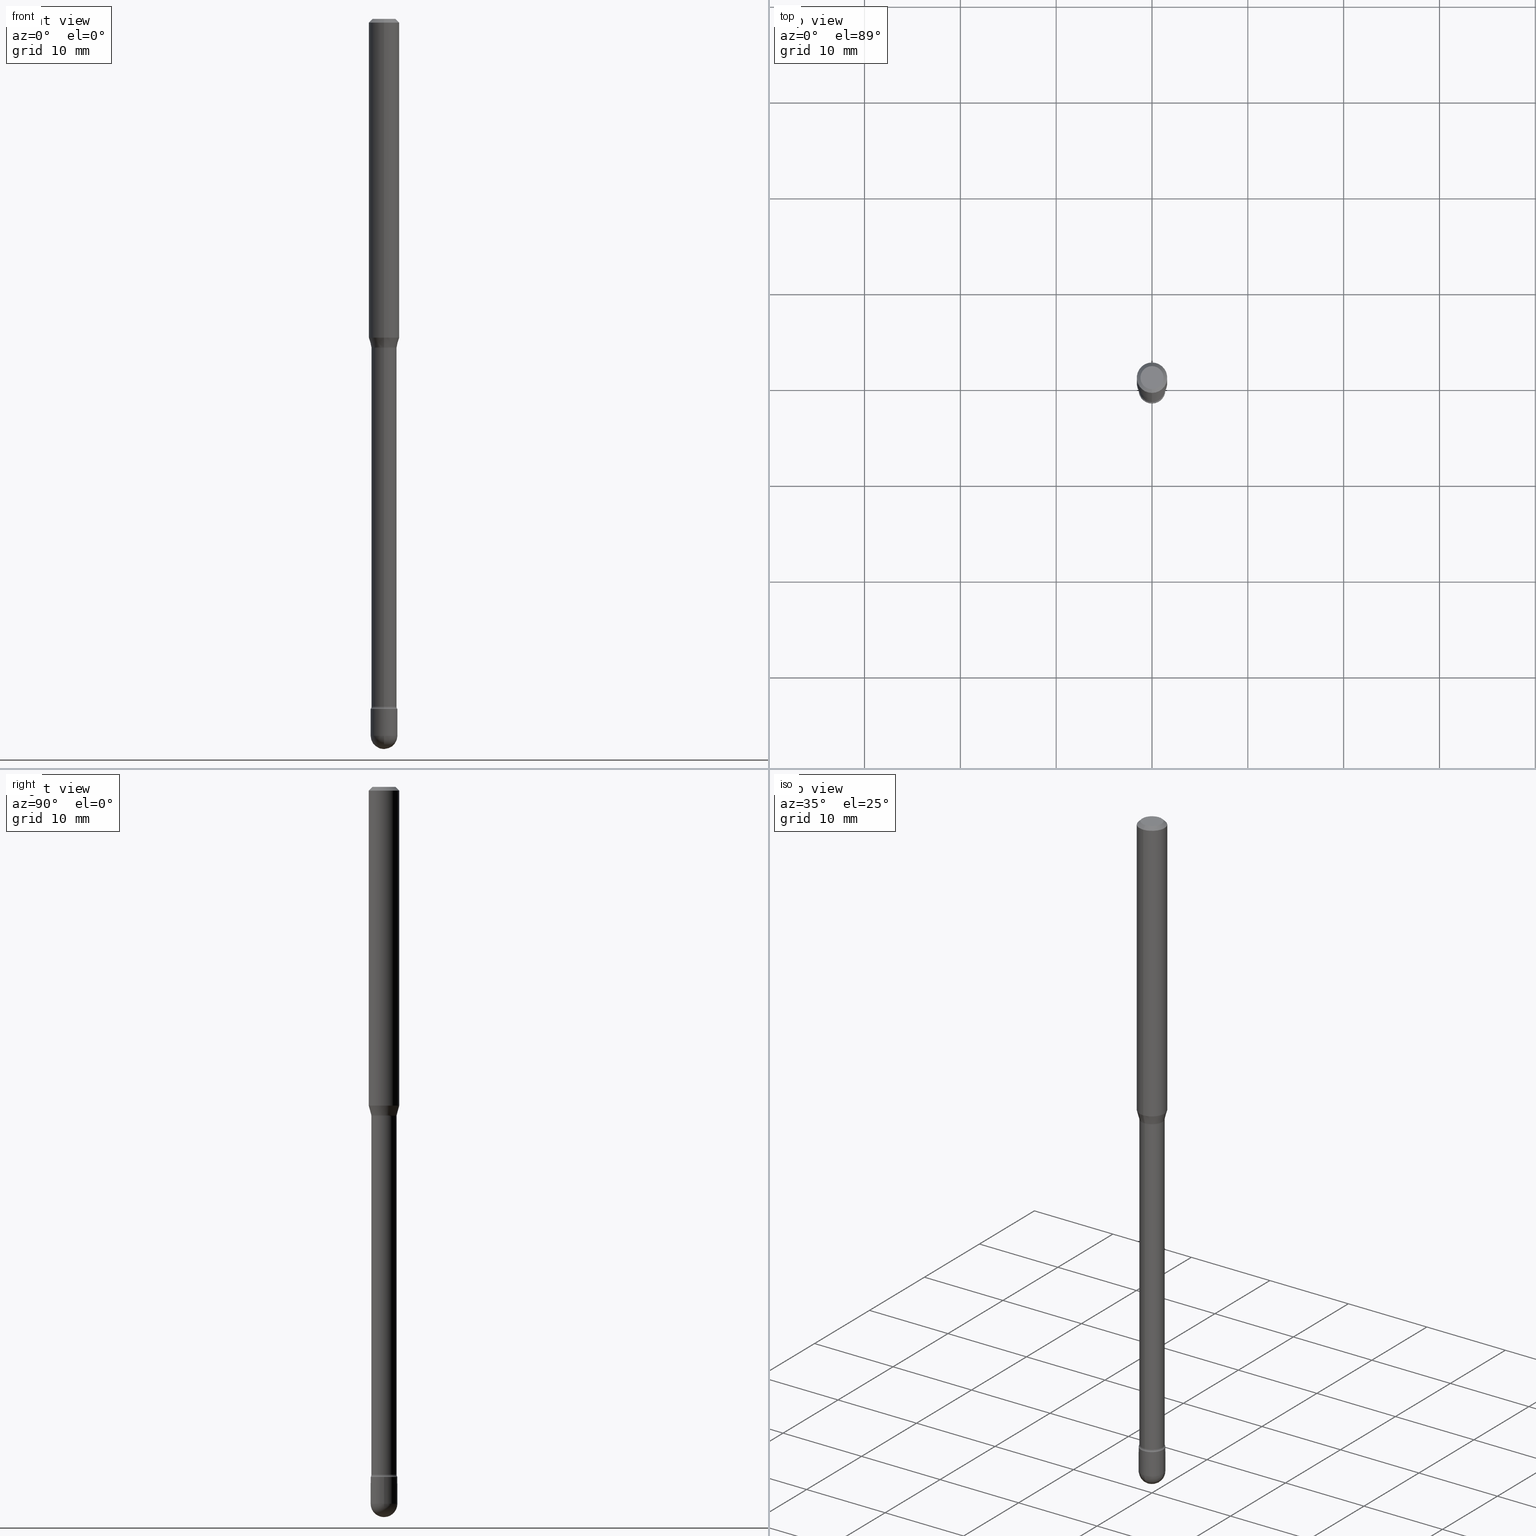
[diagram: canonical four-view strip — front | top / right | iso, engineering-drawing reading convention]
A machine part, canonical four-view strip (front | top / right | iso — engineering-drawing reading convention). The complete STEP part file that produces these views, byte-faithful:
ISO-10303-21;
HEADER;
FILE_DESCRIPTION (( 'STEP AP203' ),
    '1' );
FILE_NAME ('03937.STEP',
    '2024-04-09T21:17:44',
    ( '' ),
    ( '' ),
    'SwSTEP 2.0',
    'SolidWorks 2023',
    '' );
FILE_SCHEMA (( 'CONFIG_CONTROL_DESIGN' ));
ENDSEC;

DATA;
#1 = ADVANCED_FACE ( 'NONE', ( #493 ), #275, .F. ) ;
#2 = DIRECTION ( 'NONE',  ( -2.445438913098746868E-29, 3.491524147444264637E-15, 1.000000000000000000 ) ) ;
#3 = DIRECTION ( 'NONE',  ( -2.445468806185136877E-29, 3.491481338843145188E-15, 1.000000000000000000 ) ) ;
#4 = FACE_OUTER_BOUND ( 'NONE', #56, .T. ) ;
#5 = VECTOR ( 'NONE', #505, 39.37007874015748143 ) ;
#6 = DIRECTION ( 'NONE',  ( -6.982962677686265922E-15, -1.000000000000000000, 3.483106191921935554E-15 ) ) ;
#7 = ORIENTED_EDGE ( 'NONE', *, *, #425, .T. ) ;
#8 = DIRECTION ( 'NONE',  ( -6.982962677686266711E-15, -1.000000000000000000, 0.000000000000000000 ) ) ;
#9 = ADVANCED_FACE ( 'NONE', ( #438 ), #452, .T. ) ;
#10 = CARTESIAN_POINT ( 'NONE',  ( 6.909864735020778379E-29, -9.865697093748834148E-15, -2.825613307291703347 ) ) ;
#11 = ORIENTED_EDGE ( 'NONE', *, *, #379, .F. ) ;
#12 = ORIENTED_EDGE ( 'NONE', *, *, #344, .T. ) ;
#13 = DIRECTION ( 'NONE',  ( -2.445468806185136597E-29, 3.491481338843145583E-15, 1.000000000000000000 ) ) ;
#14 = EDGE_LOOP ( 'NONE', ( #348, #99, #91, #454 ) ) ;
#15 = PERSON_AND_ORGANIZATION_ROLE ( 'design_supplier' ) ;
#16 = VERTEX_POINT ( 'NONE', #199 ) ;
#17 = AXIS2_PLACEMENT_3D ( 'NONE', #231, #285, #544 ) ;
#18 = CIRCLE ( 'NONE', #414, 0.05500000000000000028 ) ;
#19 = CARTESIAN_POINT ( 'NONE',  ( 0.05500000000000000028, -1.028241254289306465E-14, -2.835000000000000409 ) ) ;
#20 = ORIENTED_EDGE ( 'NONE', *, *, #166, .F. ) ;
#21 = EDGE_CURVE ( 'NONE', #16, #547, #139, .T. ) ;
#22 = DIRECTION ( 'NONE',  ( -1.000000000000000000, 6.982962677686265922E-15, -4.883557194083112901E-29 ) ) ;
#23 = CARTESIAN_POINT ( 'NONE',  ( 4.739320047520198249E-16, 0.06669999999999527696, -1.351974787463811722 ) ) ;
#24 = DIRECTION ( 'NONE',  ( -2.445438913098746868E-29, 3.491524147444264637E-15, 1.000000000000000000 ) ) ;
#25 = VERTEX_POINT ( 'NONE', #329 ) ;
#26 = CARTESIAN_POINT ( 'NONE',  ( 3.296677862327240735E-29, -4.706897522978815768E-15, -1.348092501787273356 ) ) ;
#27 = CARTESIAN_POINT ( 'NONE',  ( 6.932819318634947422E-29, -9.898470958004491062E-15, -2.835000000000000409 ) ) ;
#28 = AXIS2_PLACEMENT_3D ( 'NONE', #262, #437, #41 ) ;
#29 = SPHERICAL_SURFACE ( 'NONE', #95, 0.05499999999999991007 ) ;
#30 = VECTOR ( 'NONE', #367, 39.37007874015748143 ) ;
#31 = CC_DESIGN_PERSON_AND_ORGANIZATION_ASSIGNMENT ( #48, #140, ( #411 ) ) ;
#32 = EDGE_CURVE ( 'NONE', #181, #16, #245, .T. ) ;
#33 = VECTOR ( 'NONE', #421, 39.37007874015748143 ) ;
#34 = DIRECTION ( 'NONE',  ( -6.982962677686266711E-15, -1.000000000000000000, 5.232311393739397672E-15 ) ) ;
#35 = LINE ( 'NONE', #297, #508 ) ;
#36 = APPROVAL_PERSON_ORGANIZATION ( #184, #80, #440 ) ;
#37 = EDGE_CURVE ( 'NONE', #314, #530, #177, .T. ) ;
#38 = AXIS2_PLACEMENT_3D ( 'NONE', #345, #217, #6 ) ;
#39 = ORIENTED_EDGE ( 'NONE', *, *, #126, .T. ) ;
#40 = CARTESIAN_POINT ( 'NONE',  ( -4.657636106016061720E-16, -0.06670000000001005680, -2.825613307291703347 ) ) ;
#41 = DIRECTION ( 'NONE',  ( 1.000000000000000000, 0.000000000000000000, 0.000000000000000000 ) ) ;
#42 = LINE ( 'NONE', #92, #49 ) ;
#43 = DIRECTION ( 'NONE',  ( -6.982962677686266711E-15, -1.000000000000000000, 3.491524147444265031E-15 ) ) ;
#44 = COORDINATED_UNIVERSAL_TIME_OFFSET ( 5, 0, .BEHIND. ) ;
#45 = DATE_AND_TIME ( #350, #426 ) ;
#46 = DIRECTION ( 'NONE',  ( -2.445438913098746868E-29, 3.491524147444264637E-15, 1.000000000000000000 ) ) ;
#47 = EDGE_LOOP ( 'NONE', ( #136, #315, #271, #497 ) ) ;
#48 = PERSON_AND_ORGANIZATION ( #59, #514 ) ;
#49 = VECTOR ( 'NONE', #3, 39.37007874015748143 ) ;
#50 = CARTESIAN_POINT ( 'NONE',  ( -3.645882506857935592E-16, -0.05221111260566867890, -1.348092501787273134 ) ) ;
#51 = LINE ( 'NONE', #502, #333 ) ;
#52 = APPROVAL_DATE_TIME ( #444, #124 ) ;
#53 = VERTEX_POINT ( 'NONE', #498 ) ;
#54 = ORIENTED_EDGE ( 'NONE', *, *, #361, .F. ) ;
#55 = CARTESIAN_POINT ( 'NONE',  ( 7.201905634215227412E-29, -1.028241254289306465E-14, -2.945000000000000284 ) ) ;
#56 = EDGE_LOOP ( 'NONE', ( #54, #485, #306, #490 ) ) ;
#57 = EDGE_LOOP ( 'NONE', ( #61, #439, #7, #323 ) ) ;
#58 = CONICAL_SURFACE ( 'NONE', #377, 0.06250000000000000000, 0.7853981633974483900 ) ;
#59 = PERSON ( 'UNSPECIFIED', 'UNSPECIFIED', 'UNSPECIFIED', ('UNSPECIFIED'), ('UNSPECIFIED'), ('UNSPECIFIED') ) ;
#60 = CARTESIAN_POINT ( 'NONE',  ( -0.05500000000000000028, -9.699582564588636708E-15, -2.835000000000000409 ) ) ;
#61 = ORIENTED_EDGE ( 'NONE', *, *, #66, .F. ) ;
#62 = CARTESIAN_POINT ( 'NONE',  ( -1.169113584055446105E-44, 1.669184350826100908E-30, 4.780733988912460139E-16 ) ) ;
#63 = LINE ( 'NONE', #98, #30 ) ;
#64 = VERTEX_POINT ( 'NONE', #417 ) ;
#65 = DIRECTION ( 'NONE',  ( -6.982962677686265922E-15, -1.000000000000000000, 3.491524147444265031E-15 ) ) ;
#66 = EDGE_CURVE ( 'NONE', #530, #280, #563, .T. ) ;
#67 = DIRECTION ( 'NONE',  ( -2.445438913098746868E-29, 3.491524147444264637E-15, 1.000000000000000000 ) ) ;
#68 = CARTESIAN_POINT ( 'NONE',  ( -1.169113584055446105E-44, 1.669184350826100908E-30, 4.780733988912460139E-16 ) ) ;
#69 = DIRECTION ( 'NONE',  ( -6.982962677686265922E-15, -1.000000000000000000, 0.000000000000000000 ) ) ;
#70 = SPHERICAL_SURFACE ( 'NONE', #258, 0.05499999999999991007 ) ;
#71 = SECURITY_CLASSIFICATION ( '', '', #522 ) ;
#72 = CC_DESIGN_PERSON_AND_ORGANIZATION_ASSIGNMENT ( #193, #130, ( #71 ) ) ;
#73 = CIRCLE ( 'NONE', #120, 0.05170000000000024576 ) ;
#74 = ADVANCED_FACE ( 'NONE', ( #102 ), #451, .T. ) ;
#75 = CONICAL_SURFACE ( 'NONE', #156, 0.06250000000000000000, 0.7853981633974483900 ) ;
#76 = AXIS2_PLACEMENT_3D ( 'NONE', #336, #2, #477 ) ;
#77 = CARTESIAN_POINT ( 'NONE',  ( 3.296677862327240735E-29, -4.706897522978815768E-15, -1.348092501787273356 ) ) ;
#78 = EDGE_CURVE ( 'NONE', #25, #53, #164, .T. ) ;
#79 = CARTESIAN_POINT ( 'NONE',  ( 4.739320047520571972E-16, 0.06669999999999032259, -2.825613307291703347 ) ) ;
#80 = APPROVAL ( #529, 'UNSPECIFIED' ) ;
#81 = FACE_OUTER_BOUND ( 'NONE', #415, .T. ) ;
#82 = APPROVAL_PERSON_ORGANIZATION ( #484, #124, #264 ) ;
#83 = CLOSED_SHELL ( 'NONE', ( #506, #261, #555, #142, #531 ) ) ;
#84 = LINE ( 'NONE', #291, #376 ) ;
#85 = AXIS2_PLACEMENT_3D ( 'NONE', #241, #13, #418 ) ;
#86 = DIRECTION ( 'NONE',  ( 6.982962677686265922E-15, 1.000000000000000000, -3.491524147444264637E-15 ) ) ;
#87 = EDGE_CURVE ( 'NONE', #409, #185, #433, .T. ) ;
#88 = COORDINATED_UNIVERSAL_TIME_OFFSET ( 5, 0, .BEHIND. ) ;
#89 = DATE_TIME_ROLE ( 'classification_date' ) ;
#90 = CARTESIAN_POINT ( 'NONE',  ( -3.610191704363808417E-16, -0.05170000000000012780, 6.585851973141149814E-16 ) ) ;
#91 = ORIENTED_EDGE ( 'NONE', *, *, #289, .T. ) ;
#92 = CARTESIAN_POINT ( 'NONE',  ( -0.05500000000000000028, 3.907985046680551042E-16, -2.705414299640198362E-30 ) ) ;
#93 = CIRCLE ( 'NONE', #380, 0.05221111260566397433 ) ;
#94 = CALENDAR_DATE ( 2024, 9, 4 ) ;
#95 = AXIS2_PLACEMENT_3D ( 'NONE', #227, #22, #183 ) ;
#96 = EDGE_LOOP ( 'NONE', ( #12, #236 ) ) ;
#97 = DIRECTION ( 'NONE',  ( -2.445438913098746868E-29, 3.491524147444264637E-15, 1.000000000000000000 ) ) ;
#98 = CARTESIAN_POINT ( 'NONE',  ( -4.287811248607203282E-16, -0.06250000000000005551, -0.01499999999999986587 ) ) ;
#99 = ORIENTED_EDGE ( 'NONE', *, *, #468, .T. ) ;
#100 = APPROVAL_STATUS ( 'not_yet_approved' ) ;
#101 = ORIENTED_EDGE ( 'NONE', *, *, #200, .T. ) ;
#102 = FACE_OUTER_BOUND ( 'NONE', #445, .T. ) ;
#103 = EDGE_CURVE ( 'NONE', #482, #226, #471, .T. ) ;
#104 = APPROVAL_STATUS ( 'not_yet_approved' ) ;
#105 = ORIENTED_EDGE ( 'NONE', *, *, #328, .F. ) ;
#106 = CARTESIAN_POINT ( 'NONE',  ( 6.909949201323477273E-29, -9.865576133195845499E-15, -2.825613307291703347 ) ) ;
#107 = CARTESIAN_POINT ( 'NONE',  ( 6.909864735020778379E-29, -9.865697093748834148E-15, -2.825613307291703347 ) ) ;
#108 =( GEOMETRIC_REPRESENTATION_CONTEXT ( 3 ) GLOBAL_UNCERTAINTY_ASSIGNED_CONTEXT ( ( #252 ) ) GLOBAL_UNIT_ASSIGNED_CONTEXT ( ( #298, #290, #381 ) ) REPRESENTATION_CONTEXT ( 'NONE', 'WORKASPACE' ) );
#109 = EDGE_LOOP ( 'NONE', ( #528, #364, #542, #233 ) ) ;
#110 = DIRECTION ( 'NONE',  ( -2.445438913098746868E-29, 3.491524147444264637E-15, 1.000000000000000000 ) ) ;
#111 = CIRCLE ( 'NONE', #219, 0.01499999999999994220 ) ;
#112 = CARTESIAN_POINT ( 'NONE',  ( 3.202776308162011460E-29, -4.572827707497310591E-15, -1.309693851278256549 ) ) ;
#113 = EDGE_CURVE ( 'NONE', #64, #53, #35, .T. ) ;
#114 = ORIENTED_EDGE ( 'NONE', *, *, #103, .F. ) ;
#115 = FACE_OUTER_BOUND ( 'NONE', #109, .T. ) ;
#116 = DIRECTION ( 'NONE',  ( -2.445438913098746868E-29, 3.491524147444264637E-15, 1.000000000000000000 ) ) ;
#117 = FACE_OUTER_BOUND ( 'NONE', #224, .T. ) ;
#118 = AXIS2_PLACEMENT_3D ( 'NONE', #549, #24, #201 ) ;
#119 = CARTESIAN_POINT ( 'NONE',  ( -0.05500000000000000028, -9.699582564588636708E-15, -2.945000000000000284 ) ) ;
#120 = AXIS2_PLACEMENT_3D ( 'NONE', #107, #277, #69 ) ;
#121 = EDGE_CURVE ( 'NONE', #530, #212, #84, .T. ) ;
#122 = DIRECTION ( 'NONE',  ( -2.445468806185136597E-29, 3.491481338843145583E-15, 1.000000000000000000 ) ) ;
#123 = CARTESIAN_POINT ( 'NONE',  ( 7.201905634215227412E-29, -1.028241254289306465E-14, -2.945000000000000284 ) ) ;
#124 = APPROVAL ( #104, 'UNSPECIFIED' ) ;
#125 = AXIS2_PLACEMENT_3D ( 'NONE', #68, #510, #558 ) ;
#126 = EDGE_CURVE ( 'NONE', #146, #195, #208, .T. ) ;
#127 = DIRECTION ( 'NONE',  ( -2.445438913098746308E-29, 3.491524147444264637E-15, 1.000000000000000000 ) ) ;
#128 = CARTESIAN_POINT ( 'NONE',  ( -1.169113584055446105E-44, 1.669184350826100908E-30, 4.780733988912460139E-16 ) ) ;
#129 = VECTOR ( 'NONE', #351, 39.37007874015748143 ) ;
#130 = PERSON_AND_ORGANIZATION_ROLE ( 'classification_officer' ) ;
#131 = EDGE_LOOP ( 'NONE', ( #167, #266, #494, #151, #400 ) ) ;
#132 = DIRECTION ( 'NONE',  ( -6.982962677686266711E-15, -1.000000000000000000, 3.491524147444265031E-15 ) ) ;
#133 = COORDINATED_UNIVERSAL_TIME_OFFSET ( 5, 0, .BEHIND. ) ;
#134 = APPROVAL_DATE_TIME ( #45, #80 ) ;
#135 = EDGE_LOOP ( 'NONE', ( #105, #416, #11, #543 ) ) ;
#136 = ORIENTED_EDGE ( 'NONE', *, *, #472, .F. ) ;
#137 = CARTESIAN_POINT ( 'NONE',  ( 3.907985046681240802E-16, 0.05499999999999006378, -2.835000000000000409 ) ) ;
#138 = FACE_OUTER_BOUND ( 'NONE', #131, .T. ) ;
#139 = CIRCLE ( 'NONE', #486, 0.05500000000000000028 ) ;
#140 = PERSON_AND_ORGANIZATION_ROLE ( 'creator' ) ;
#141 = EDGE_LOOP ( 'NONE', ( #318, #349, #538, #483 ) ) ;
#142 = ADVANCED_FACE ( 'NONE', ( #478 ), #70, .T. ) ;
#143 = FACE_OUTER_BOUND ( 'NONE', #47, .T. ) ;
#144 = DIRECTION ( 'NONE',  ( 7.105427357601006592E-15, 1.000000000000000000, 0.000000000000000000 ) ) ;
#145 = DIRECTION ( 'NONE',  ( -6.982962677686266711E-15, -1.000000000000000000, 5.232311393739397672E-15 ) ) ;
#146 = VERTEX_POINT ( 'NONE', #435 ) ;
#147 = EDGE_LOOP ( 'NONE', ( #283, #448 ) ) ;
#148 = CARTESIAN_POINT ( 'NONE',  ( 3.673505943880415323E-16, 0.05169999999999527751, -1.351974787463811722 ) ) ;
#149 = DIRECTION ( 'NONE',  ( -6.982962677686266711E-15, -1.000000000000000000, 5.232311393739397672E-15 ) ) ;
#150 = DIRECTION ( 'NONE',  ( 2.445438913098746308E-29, -3.491524147444264637E-15, -1.000000000000000000 ) ) ;
#151 = ORIENTED_EDGE ( 'NONE', *, *, #446, .F. ) ;
#152 = DIRECTION ( 'NONE',  ( -6.982962677686266711E-15, -1.000000000000000000, 5.284038672464726492E-15 ) ) ;
#153 = DIRECTION ( 'NONE',  ( -6.982962677686266711E-15, -1.000000000000000000, 0.000000000000000000 ) ) ;
#154 = AXIS2_PLACEMENT_3D ( 'NONE', #123, #172, #339 ) ;
#155 = ORIENTED_EDGE ( 'NONE', *, *, #446, .T. ) ;
#156 = AXIS2_PLACEMENT_3D ( 'NONE', #228, #500, #405 ) ;
#157 = CARTESIAN_POINT ( 'NONE',  ( 3.668158369648140306E-31, -5.237286221166425502E-17, -0.01500000000000008271 ) ) ;
#158 = CIRCLE ( 'NONE', #209, 0.04749999999999999362 ) ;
#159 = DIRECTION ( 'NONE',  ( 1.000000000000000000, -6.982962677686265922E-15, 4.883557194083112340E-29 ) ) ;
#160 = DIRECTION ( 'NONE',  ( -6.982962677686265922E-15, -1.000000000000000000, 3.491524147444265426E-15 ) ) ;
#161 = DIRECTION ( 'NONE',  ( 1.000000000000000000, -6.982962677686265922E-15, 4.876176775795935793E-29 ) ) ;
#162 = LOCAL_TIME ( 17, 17, 44.00000000000000000, #133 ) ;
#163 = ADVANCED_FACE ( 'NONE', ( #175 ), #521, .T. ) ;
#164 = CIRCLE ( 'NONE', #250, 0.06250000000000000000 ) ;
#165 = CARTESIAN_POINT ( 'NONE',  ( 0.000000000000000000, 0.000000000000000000, 0.000000000000000000 ) ) ;
#166 = EDGE_CURVE ( 'NONE', #280, #307, #523, .T. ) ;
#167 = ORIENTED_EDGE ( 'NONE', *, *, #21, .T. ) ;
#168 = CIRCLE ( 'NONE', #38, 0.06250000000000000000 ) ;
#169 = CC_DESIGN_DATE_AND_TIME_ASSIGNMENT ( #225, #341, ( #331 ) ) ;
#170 = DIMENSIONAL_EXPONENTS ( 1.000000000000000000, 0.000000000000000000, 0.000000000000000000, 0.000000000000000000, 0.000000000000000000, 0.000000000000000000, 0.000000000000000000 ) ;
#171 = DIRECTION ( 'NONE',  ( -2.445438913098746868E-29, 3.491524147444264637E-15, 1.000000000000000000 ) ) ;
#172 = DIRECTION ( 'NONE',  ( -2.445468806185136597E-29, 3.491481338843145583E-15, 1.000000000000000000 ) ) ;
#173 = APPLICATION_PROTOCOL_DEFINITION ( 'international standard', 'config_control_design', 1994, #467 ) ;
#174 = CARTESIAN_POINT ( 'NONE',  ( 3.840629472728140100E-16, 0.05499999999999010541, -2.835000000000000409 ) ) ;
#175 = FACE_OUTER_BOUND ( 'NONE', #276, .T. ) ;
#176 = CALENDAR_DATE ( 2024, 9, 4 ) ;
#177 = CIRCLE ( 'NONE', #465, 0.05221111260566397433 ) ;
#178 = CIRCLE ( 'NONE', #456, 0.05500000000000000028 ) ;
#179 = PERSON_AND_ORGANIZATION_ROLE ( 'creator' ) ;
#180 = DIRECTION ( 'NONE',  ( -2.445438913098746868E-29, 3.491524147444264637E-15, 1.000000000000000000 ) ) ;
#181 = VERTEX_POINT ( 'NONE', #319 ) ;
#182 = ORIENTED_EDGE ( 'NONE', *, *, #457, .F. ) ;
#183 = DIRECTION ( 'NONE',  ( 6.982962677686265922E-15, 1.000000000000000000, 0.000000000000000000 ) ) ;
#184 = PERSON_AND_ORGANIZATION ( #59, #514 ) ;
#185 = VERTEX_POINT ( 'NONE', #495 ) ;
#186 = ADVANCED_FACE ( 'NONE', ( #534 ), #75, .T. ) ;
#187 = ORIENTED_EDGE ( 'NONE', *, *, #269, .T. ) ;
#188 = CARTESIAN_POINT ( 'NONE',  ( 3.840629472727447874E-16, 0.04749999999999999362, -2.485923956665947374E-16 ) ) ;
#189 = DIRECTION ( 'NONE',  ( -2.445438913098746868E-29, 3.491524147444264637E-15, 1.000000000000000000 ) ) ;
#190 = DIRECTION ( 'NONE',  ( -2.445438913098746868E-29, 3.491524147444264637E-15, 1.000000000000000000 ) ) ;
#191 = ORIENTED_EDGE ( 'NONE', *, *, #113, .T. ) ;
#192 = AXIS2_PLACEMENT_3D ( 'NONE', #366, #548, #203 ) ;
#193 = PERSON_AND_ORGANIZATION ( #59, #514 ) ;
#194 = TOROIDAL_SURFACE ( 'NONE', #383, 0.06669999999999999540, 0.01500000000000002720 ) ;
#195 = VERTEX_POINT ( 'NONE', #492 ) ;
#196 = DIRECTION ( 'NONE',  ( -6.982962677686265922E-15, -1.000000000000000000, 4.370956789862821150E-15 ) ) ;
#197 = CARTESIAN_POINT ( 'NONE',  ( 7.201905634215227412E-29, -1.028241254289306465E-14, -2.945000000000000284 ) ) ;
#198 = EDGE_LOOP ( 'NONE', ( #450, #353, #274, #368 ) ) ;
#199 = CARTESIAN_POINT ( 'NONE',  ( 3.840629472728163765E-16, 0.05499999999998968214, -2.945000000000000284 ) ) ;
#200 = EDGE_CURVE ( 'NONE', #212, #64, #321, .T. ) ;
#201 = DIRECTION ( 'NONE',  ( -6.982962677686265133E-15, -1.000000000000000000, 3.491524147444264637E-15 ) ) ;
#202 = ORIENTED_EDGE ( 'NONE', *, *, #472, .T. ) ;
#203 = DIRECTION ( 'NONE',  ( -6.982962677686265922E-15, -1.000000000000000000, 3.491524147444265426E-15 ) ) ;
#204 = CARTESIAN_POINT ( 'NONE',  ( 3.306212169491530451E-29, -4.720394741016325897E-15, -1.351974787463811278 ) ) ;
#205 = AXIS2_PLACEMENT_3D ( 'NONE', #326, #97, #149 ) ;
#206 = CARTESIAN_POINT ( 'NONE',  ( 4.075357388645994900E-16, 0.05221111260565927670, -1.348092501787273800 ) ) ;
#207 = LOCAL_TIME ( 17, 17, 44.00000000000000000, #88 ) ;
#208 = CIRCLE ( 'NONE', #154, 0.05500000000000000028 ) ;
#209 = AXIS2_PLACEMENT_3D ( 'NONE', #223, #443, #132 ) ;
#210 = DIRECTION ( 'NONE',  ( -7.105427357601001070E-15, -1.000000000000000000, 0.000000000000000000 ) ) ;
#211 = CIRCLE ( 'NONE', #287, 0.05170000000000024576 ) ;
#212 = VERTEX_POINT ( 'NONE', #551 ) ;
#213 = DIRECTION ( 'NONE',  ( -1.000000000000000000, 6.982962677686265922E-15, -4.883557194083112901E-29 ) ) ;
#214 = CARTESIAN_POINT ( 'NONE',  ( 7.201905634215227412E-29, -1.028241254289306465E-14, -2.945000000000000284 ) ) ;
#215 = ADVANCED_FACE ( 'NONE', ( #488 ), #561, .T. ) ;
#216 = DIRECTION ( 'NONE',  ( -6.982962677686263555E-15, -1.000000000000000000, 0.000000000000000000 ) ) ;
#217 = DIRECTION ( 'NONE',  ( -2.445438913098746868E-29, 3.491524147444264637E-15, 1.000000000000000000 ) ) ;
#218 = AXIS2_PLACEMENT_3D ( 'NONE', #55, #159, #362 ) ;
#219 = AXIS2_PLACEMENT_3D ( 'NONE', #79, #257, #387 ) ;
#220 = PRODUCT ( '03937', '03937', '', ( #427 ) ) ;
#221 = CIRCLE ( 'NONE', #246, 0.05500000000000000028 ) ;
#222 = EDGE_CURVE ( 'NONE', #402, #25, #355, .T. ) ;
#223 = CARTESIAN_POINT ( 'NONE',  ( 2.023335485053711433E-45, -2.889266265655194036E-31, -8.274499866299218144E-17 ) ) ;
#224 = EDGE_LOOP ( 'NONE', ( #302, #242, #39, #155, #114 ) ) ;
#225 = DATE_AND_TIME ( #176, #520 ) ;
#226 = VERTEX_POINT ( 'NONE', #19 ) ;
#227 = CARTESIAN_POINT ( 'NONE',  ( 7.201905634215227412E-29, -1.028241254289306465E-14, -2.945000000000000284 ) ) ;
#228 = CARTESIAN_POINT ( 'NONE',  ( 3.668158369648140306E-31, -5.237286221166425502E-17, -0.01500000000000008271 ) ) ;
#229 = EDGE_LOOP ( 'NONE', ( #524, #565, #182, #312 ) ) ;
#230 = EDGE_LOOP ( 'NONE', ( #527, #406, #359, #461 ) ) ;
#231 = CARTESIAN_POINT ( 'NONE',  ( 6.932819318634947422E-29, -9.898470958004491062E-15, -2.835000000000000409 ) ) ;
#232 = CC_DESIGN_APPROVAL ( #378, ( #411 ) ) ;
#233 = ORIENTED_EDGE ( 'NONE', *, *, #425, .F. ) ;
#234 = EDGE_CURVE ( 'NONE', #386, #280, #459, .T. ) ;
#235 = CIRCLE ( 'NONE', #424, 0.05500000000000000028 ) ;
#236 = ORIENTED_EDGE ( 'NONE', *, *, #103, .T. ) ;
#237 = CARTESIAN_POINT ( 'NONE',  ( -3.645882506857935592E-16, -0.05221111260566867890, -1.348092501787273134 ) ) ;
#238 = DIRECTION ( 'NONE',  ( -6.982962677686266711E-15, -1.000000000000000000, 5.232311393739397672E-15 ) ) ;
#239 = FACE_OUTER_BOUND ( 'NONE', #57, .T. ) ;
#240 = ORIENTED_EDGE ( 'NONE', *, *, #337, .T. ) ;
#241 = CARTESIAN_POINT ( 'NONE',  ( 0.000000000000000000, 0.000000000000000000, 0.000000000000000000 ) ) ;
#242 = ORIENTED_EDGE ( 'NONE', *, *, #457, .T. ) ;
#243 = CARTESIAN_POINT ( 'NONE',  ( 6.932904065534862655E-29, -9.898349595620319665E-15, -2.835000000000000409 ) ) ;
#244 = CALENDAR_DATE ( 2024, 9, 4 ) ;
#245 = CIRCLE ( 'NONE', #218, 0.05499999999999991007 ) ;
#246 = AXIS2_PLACEMENT_3D ( 'NONE', #265, #122, #294 ) ;
#247 = DIRECTION ( 'NONE',  ( -1.000000000000000000, 6.982962677686265922E-15, -4.883557194083112901E-29 ) ) ;
#248 = ADVANCED_FACE ( 'NONE', ( #115 ), #194, .F. ) ;
#249 = ADVANCED_FACE ( 'NONE', ( #363 ), #335, .T. ) ;
#250 = AXIS2_PLACEMENT_3D ( 'NONE', #157, #110, #504 ) ;
#251 = AXIS2_PLACEMENT_3D ( 'NONE', #243, #423, #161 ) ;
#252 = UNCERTAINTY_MEASURE_WITH_UNIT (LENGTH_MEASURE( 1.000000000000000082E-05 ), #298, 'distance_accuracy_value', 'NONE');
#253 = DIRECTION ( 'NONE',  ( -2.445438913098746868E-29, 3.491524147444264637E-15, 1.000000000000000000 ) ) ;
#254 = CC_DESIGN_PERSON_AND_ORGANIZATION_ASSIGNMENT ( #390, #179, ( #331 ) ) ;
#255 = DIRECTION ( 'NONE',  ( -2.445468806185136597E-29, 3.491481338843145583E-15, 1.000000000000000000 ) ) ;
#256 = DATE_AND_TIME ( #244, #479 ) ;
#257 = DIRECTION ( 'NONE',  ( 1.000000000000000000, -7.105427357601001070E-15, 4.926316032796245516E-29 ) ) ;
#258 = AXIS2_PLACEMENT_3D ( 'NONE', #214, #247, #388 ) ;
#259 = DIRECTION ( 'NONE',  ( -2.445468806185136597E-29, 3.491481338843145583E-15, 1.000000000000000000 ) ) ;
#260 = CIRCLE ( 'NONE', #466, 0.04749999999999999362 ) ;
#261 = ADVANCED_FACE ( 'NONE', ( #398 ), #29, .T. ) ;
#262 = CARTESIAN_POINT ( 'NONE',  ( 0.000000000000000000, 0.000000000000000000, 0.000000000000000000 ) ) ;
#263 = DIRECTION ( 'NONE',  ( -1.000000000000000000, 6.982962677686265922E-15, -4.883557194083112901E-29 ) ) ;
#264 = APPROVAL_ROLE ( '' ) ;
#265 = CARTESIAN_POINT ( 'NONE',  ( 6.932904065534862655E-29, -9.898349595620319665E-15, -2.835000000000000409 ) ) ;
#266 = ORIENTED_EDGE ( 'NONE', *, *, #407, .T. ) ;
#267 = DATE_AND_TIME ( #273, #162 ) ;
#268 = ORIENTED_EDGE ( 'NONE', *, *, #334, .F. ) ;
#269 = EDGE_CURVE ( 'NONE', #64, #212, #311, .T. ) ;
#270 = AXIS2_PLACEMENT_3D ( 'NONE', #491, #263, #216 ) ;
#271 = ORIENTED_EDGE ( 'NONE', *, *, #87, .T. ) ;
#272 = DIRECTION ( 'NONE',  ( -6.982962677686265922E-15, -1.000000000000000000, 0.000000000000000000 ) ) ;
#273 = CALENDAR_DATE ( 2024, 9, 4 ) ;
#274 = ORIENTED_EDGE ( 'NONE', *, *, #269, .F. ) ;
#275 = PLANE ( 'NONE',  #382 ) ;
#276 = EDGE_LOOP ( 'NONE', ( #347, #101, #191, #304 ) ) ;
#277 = DIRECTION ( 'NONE',  ( -2.445438913098746868E-29, 3.491524147444264637E-15, 1.000000000000000000 ) ) ;
#278 = CC_DESIGN_APPROVAL ( #124, ( #331 ) ) ;
#279 = AXIS2_PLACEMENT_3D ( 'NONE', #128, #557, #160 ) ;
#280 = VERTEX_POINT ( 'NONE', #148 ) ;
#281 = CARTESIAN_POINT ( 'NONE',  ( 4.364351673553919652E-16, 0.06249999999999995143, -0.01500000000000030129 ) ) ;
#282 = DIRECTION ( 'NONE',  ( -2.445468806185136597E-29, 3.491481338843145583E-15, 1.000000000000000000 ) ) ;
#283 = ORIENTED_EDGE ( 'NONE', *, *, #305, .T. ) ;
#284 = DIRECTION ( 'NONE',  ( -6.982962677686265133E-15, -1.000000000000000000, 3.491524147444264637E-15 ) ) ;
#285 = DIRECTION ( 'NONE',  ( -2.445438913098746868E-29, 3.491524147444264637E-15, 1.000000000000000000 ) ) ;
#286 = EDGE_CURVE ( 'NONE', #533, #386, #73, .T. ) ;
#287 = AXIS2_PLACEMENT_3D ( 'NONE', #10, #413, #272 ) ;
#288 = FACE_OUTER_BOUND ( 'NONE', #96, .T. ) ;
#289 = EDGE_CURVE ( 'NONE', #53, #25, #168, .T. ) ;
#290 =( NAMED_UNIT ( * ) PLANE_ANGLE_UNIT ( ) SI_UNIT ( $, .RADIAN. ) );
#291 = CARTESIAN_POINT ( 'NONE',  ( 3.709822678791042177E-16, 0.05221111260565927670, -1.348092501787273800 ) ) ;
#292 = VECTOR ( 'NONE', #46, 39.37007874015748143 ) ;
#293 = LENGTH_MEASURE_WITH_UNIT ( LENGTH_MEASURE( 0.02539999999999999897 ), #475 );
#294 = DIRECTION ( 'NONE',  ( 1.000000000000000000, -6.982962677686279332E-15, 0.000000000000000000 ) ) ;
#295 = EDGE_CURVE ( 'NONE', #458, #402, #260, .T. ) ;
#296 = DIRECTION ( 'NONE',  ( -2.445438913098746868E-29, 3.491524147444264637E-15, 1.000000000000000000 ) ) ;
#297 = CARTESIAN_POINT ( 'NONE',  ( -4.364351673553916201E-16, -0.06250000000000000000, 6.962936581065126030E-16 ) ) ;
#298 =( CONVERSION_BASED_UNIT ( 'INCH', #293 ) LENGTH_UNIT ( ) NAMED_UNIT ( #170 ) );
#299 = PRODUCT_DEFINITION_SHAPE ( 'NONE', 'NONE',  #331 ) ;
#300 = DIRECTION ( 'NONE',  ( -1.000000000000000000, 7.105427357601001070E-15, -4.926315508542082329E-29 ) ) ;
#301 = AXIS2_PLACEMENT_3D ( 'NONE', #40, #213, #8 ) ;
#302 = ORIENTED_EDGE ( 'NONE', *, *, #407, .F. ) ;
#303 = CARTESIAN_POINT ( 'NONE',  ( -3.610191704363469207E-16, -0.05170000000000472135, -1.351974787463811056 ) ) ;
#304 = ORIENTED_EDGE ( 'NONE', *, *, #78, .F. ) ;
#305 = EDGE_CURVE ( 'NONE', #402, #458, #158, .T. ) ;
#306 = ORIENTED_EDGE ( 'NONE', *, *, #389, .T. ) ;
#307 = VERTEX_POINT ( 'NONE', #303 ) ;
#308 = APPLICATION_PROTOCOL_DEFINITION ( 'international standard', 'config_control_design', 1994, #556 ) ;
#309 = ORIENTED_EDGE ( 'NONE', *, *, #286, .T. ) ;
#310 = DIRECTION ( 'NONE',  ( -6.982962677686265922E-15, -1.000000000000000000, 4.370956789862821150E-15 ) ) ;
#311 = CIRCLE ( 'NONE', #372, 0.06250000000000000000 ) ;
#312 = ORIENTED_EDGE ( 'NONE', *, *, #21, .F. ) ;
#313 = CARTESIAN_POINT ( 'NONE',  ( 3.202776308162011460E-29, -4.572827707497310591E-15, -1.309693851278256549 ) ) ;
#314 = VERTEX_POINT ( 'NONE', #50 ) ;
#315 = ORIENTED_EDGE ( 'NONE', *, *, #361, .T. ) ;
#316 = DIRECTION ( 'NONE',  ( -2.445468806185136597E-29, 3.491481338843145583E-15, 1.000000000000000000 ) ) ;
#317 = EDGE_CURVE ( 'NONE', #307, #280, #395, .T. ) ;
#318 = ORIENTED_EDGE ( 'NONE', *, *, #468, .F. ) ;
#319 = CARTESIAN_POINT ( 'NONE',  ( 7.338758125850653249E-29, -1.047107623783178152E-14, -3.000000000000000444 ) ) ;
#320 = DIRECTION ( 'NONE',  ( 2.445438913098746868E-29, -3.491524147444264637E-15, -1.000000000000000000 ) ) ;
#321 = CIRCLE ( 'NONE', #553, 0.06250000000000000000 ) ;
#322 = AXIS2_PLACEMENT_3D ( 'NONE', #26, #67, #145 ) ;
#323 = ORIENTED_EDGE ( 'NONE', *, *, #317, .T. ) ;
#324 = LINE ( 'NONE', #237, #129 ) ;
#325 = DIRECTION ( 'NONE',  ( -2.445438913098746868E-29, 3.491524147444264637E-15, 1.000000000000000000 ) ) ;
#326 = CARTESIAN_POINT ( 'NONE',  ( 3.296677862327240735E-29, -4.706897522978815768E-15, -1.348092501787273356 ) ) ;
#327 = DIRECTION ( 'NONE',  ( 6.982962677686265922E-15, 1.000000000000000000, -3.483106191921935554E-15 ) ) ;
#328 = EDGE_CURVE ( 'NONE', #181, #146, #473, .T. ) ;
#329 = CARTESIAN_POINT ( 'NONE',  ( 4.440892098500948609E-16, 0.06249999999999995143, -0.01500000000000030129 ) ) ;
#330 = DIRECTION ( 'NONE',  ( 1.000000000000000000, -6.982962677686266711E-15, 4.876176775795935793E-29 ) ) ;
#331 = PRODUCT_DEFINITION ( 'UNKNOWN', '', #411, #511 ) ;
#332 = DIRECTION ( 'NONE',  ( 1.839019923739600315E-15, 0.2588190451025249583, 0.9659258262890670910 ) ) ;
#333 = VECTOR ( 'NONE', #370, 39.37007874015748143 ) ;
#334 = EDGE_CURVE ( 'NONE', #533, #307, #340, .T. ) ;
#335 = CONICAL_SURFACE ( 'NONE', #322, 0.05221111260566397433, 0.2617993877991502960 ) ;
#336 = CARTESIAN_POINT ( 'NONE',  ( 3.306171754792412151E-29, -4.720452617165725259E-15, -1.351974787463811278 ) ) ;
#337 = EDGE_CURVE ( 'NONE', #212, #25, #517, .T. ) ;
#338 = CARTESIAN_POINT ( 'NONE',  ( -3.610191704363126052E-16, -0.05170000000001011287, -2.825613307291703347 ) ) ;
#339 = DIRECTION ( 'NONE',  ( 1.000000000000000000, -6.982962677686279332E-15, 0.000000000000000000 ) ) ;
#340 = LINE ( 'NONE', #90, #292 ) ;
#341 = DATE_TIME_ROLE ( 'creation_date' ) ;
#342 = CC_DESIGN_SECURITY_CLASSIFICATION ( #71, ( #411 ) ) ;
#343 = ORIENTED_EDGE ( 'NONE', *, *, #512, .F. ) ;
#344 = EDGE_CURVE ( 'NONE', #226, #482, #221, .T. ) ;
#345 = CARTESIAN_POINT ( 'NONE',  ( 3.668158369648140306E-31, -5.237286221166425502E-17, -0.01500000000000008271 ) ) ;
#346 = AXIS2_PLACEMENT_3D ( 'NONE', #481, #300, #210 ) ;
#347 = ORIENTED_EDGE ( 'NONE', *, *, #337, .F. ) ;
#348 = ORIENTED_EDGE ( 'NONE', *, *, #295, .F. ) ;
#349 = ORIENTED_EDGE ( 'NONE', *, *, #305, .F. ) ;
#350 = CALENDAR_DATE ( 2024, 9, 4 ) ;
#351 = DIRECTION ( 'NONE',  ( -1.807323732225330139E-15, -0.2588190451025181860, 0.9659258262890689783 ) ) ;
#352 = PERSON_AND_ORGANIZATION_ROLE ( 'design_owner' ) ;
#353 = ORIENTED_EDGE ( 'NONE', *, *, #121, .T. ) ;
#354 = DIRECTION ( 'NONE',  ( 1.000000000000000000, -7.105427357601001070E-15, 4.926316032796245516E-29 ) ) ;
#355 = LINE ( 'NONE', #281, #5 ) ;
#356 = AXIS2_PLACEMENT_3D ( 'NONE', #23, #354, #144 ) ;
#357 = CARTESIAN_POINT ( 'NONE',  ( 3.668158369648140306E-31, -5.237286221166425502E-17, -0.01500000000000008271 ) ) ;
#358 = TOROIDAL_SURFACE ( 'NONE', #118, 0.06669999999999999540, 0.01500000000000002720 ) ;
#359 = ORIENTED_EDGE ( 'NONE', *, *, #436, .T. ) ;
#360 = ORIENTED_EDGE ( 'NONE', *, *, #113, .F. ) ;
#361 = EDGE_CURVE ( 'NONE', #386, #409, #111, .T. ) ;
#362 = DIRECTION ( 'NONE',  ( 6.982962677686265922E-15, 1.000000000000000000, 0.000000000000000000 ) ) ;
#363 = FACE_OUTER_BOUND ( 'NONE', #198, .T. ) ;
#364 = ORIENTED_EDGE ( 'NONE', *, *, #66, .T. ) ;
#365 = DIRECTION ( 'NONE',  ( -2.445438913098746868E-29, 3.491524147444264637E-15, 1.000000000000000000 ) ) ;
#366 = CARTESIAN_POINT ( 'NONE',  ( -1.169113584055446105E-44, 1.669184350826100908E-30, 4.780733988912460139E-16 ) ) ;
#367 = DIRECTION ( 'NONE',  ( -4.851104656540964275E-15, -0.7071067811865500152, -0.7071067811865450192 ) ) ;
#368 = ORIENTED_EDGE ( 'NONE', *, *, #436, .F. ) ;
#369 = DIRECTION ( 'NONE',  ( -6.982962677686265133E-15, -1.000000000000000000, 3.491524147444264637E-15 ) ) ;
#370 = DIRECTION ( 'NONE',  ( -2.445468806185136877E-29, 3.491481338843145188E-15, 1.000000000000000000 ) ) ;
#371 = ADVANCED_FACE ( 'NONE', ( #81 ), #432, .F. ) ;
#372 = AXIS2_PLACEMENT_3D ( 'NONE', #313, #403, #196 ) ;
#373 = DIRECTION ( 'NONE',  ( 1.000000000000000000, -6.982962677686279332E-15, 0.000000000000000000 ) ) ;
#374 = DIRECTION ( 'NONE',  ( 1.000000000000000000, -6.982962677686279332E-15, 0.000000000000000000 ) ) ;
#375 = FACE_OUTER_BOUND ( 'NONE', #396, .T. ) ;
#376 = VECTOR ( 'NONE', #332, 39.37007874015748143 ) ;
#377 = AXIS2_PLACEMENT_3D ( 'NONE', #357, #320, #327 ) ;
#378 = APPROVAL ( #100, 'UNSPECIFIED' ) ;
#379 = EDGE_CURVE ( 'NONE', #195, #16, #235, .T. ) ;
#380 = AXIS2_PLACEMENT_3D ( 'NONE', #77, #253, #34 ) ;
#381 =( NAMED_UNIT ( * ) SI_UNIT ( $, .STERADIAN. ) SOLID_ANGLE_UNIT ( ) );
#382 = AXIS2_PLACEMENT_3D ( 'NONE', #453, #150, #86 ) ;
#383 = AXIS2_PLACEMENT_3D ( 'NONE', #204, #463, #369 ) ;
#384 = DIRECTION ( 'NONE',  ( -6.982962677686265922E-15, -1.000000000000000000, 3.491524147444264637E-15 ) ) ;
#385 = CC_DESIGN_PERSON_AND_ORGANIZATION_ASSIGNMENT ( #532, #352, ( #220 ) ) ;
#386 = VERTEX_POINT ( 'NONE', #434 ) ;
#387 = DIRECTION ( 'NONE',  ( 7.105427357601001859E-15, 1.000000000000000000, 0.000000000000000000 ) ) ;
#388 = DIRECTION ( 'NONE',  ( 6.982962677686265922E-15, 1.000000000000000000, 0.000000000000000000 ) ) ;
#389 = EDGE_CURVE ( 'NONE', #533, #185, #509, .T. ) ;
#390 = PERSON_AND_ORGANIZATION ( #59, #514 ) ;
#391 = ORIENTED_EDGE ( 'NONE', *, *, #334, .T. ) ;
#392 = CARTESIAN_POINT ( 'NONE',  ( 6.909949201323477273E-29, -9.865576133195845499E-15, -2.825613307291703347 ) ) ;
#393 = CLOSED_SHELL ( 'NONE', ( #248, #545, #420, #186, #74, #249, #215, #163, #519, #1, #371, #429, #9, #496 ) ) ;
#394 = COORDINATED_UNIVERSAL_TIME_OFFSET ( 5, 0, .BEHIND. ) ;
#395 = CIRCLE ( 'NONE', #76, 0.05169999999999999596 ) ;
#396 = EDGE_LOOP ( 'NONE', ( #309, #550, #503, #268 ) ) ;
#397 = ORIENTED_EDGE ( 'NONE', *, *, #234, .F. ) ;
#398 = FACE_OUTER_BOUND ( 'NONE', #229, .T. ) ;
#399 = CARTESIAN_POINT ( 'NONE',  ( 7.201905634215227412E-29, -1.028241254289306465E-14, -2.945000000000000284 ) ) ;
#400 = ORIENTED_EDGE ( 'NONE', *, *, #379, .T. ) ;
#401 = APPROVAL_ROLE ( '' ) ;
#402 = VERTEX_POINT ( 'NONE', #188 ) ;
#403 = DIRECTION ( 'NONE',  ( -2.445438913098746868E-29, 3.491524147444264637E-15, 1.000000000000000000 ) ) ;
#404 = CARTESIAN_POINT ( 'NONE',  ( 3.296677862327240735E-29, -4.706897522978815768E-15, -1.348092501787273356 ) ) ;
#405 = DIRECTION ( 'NONE',  ( 6.982962677686265922E-15, 1.000000000000000000, -3.483106191921935554E-15 ) ) ;
#406 = ORIENTED_EDGE ( 'NONE', *, *, #562, .T. ) ;
#407 = EDGE_CURVE ( 'NONE', #547, #482, #42, .T. ) ;
#408 = PERSON_AND_ORGANIZATION ( #59, #514 ) ;
#409 = VERTEX_POINT ( 'NONE', #137 ) ;
#410 = DIRECTION ( 'NONE',  ( -6.982962677686265133E-15, -1.000000000000000000, 3.491524147444264637E-15 ) ) ;
#411 = PRODUCT_DEFINITION_FORMATION_WITH_SPECIFIED_SOURCE ( 'ANY', '', #220, .NOT_KNOWN. ) ;
#412 = AXIS2_PLACEMENT_3D ( 'NONE', #462, #316, #374 ) ;
#413 = DIRECTION ( 'NONE',  ( -2.445438913098746868E-29, 3.491524147444264637E-15, 1.000000000000000000 ) ) ;
#414 = AXIS2_PLACEMENT_3D ( 'NONE', #27, #190, #153 ) ;
#415 = EDGE_LOOP ( 'NONE', ( #343, #419 ) ) ;
#416 = ORIENTED_EDGE ( 'NONE', *, *, #32, .T. ) ;
#417 = CARTESIAN_POINT ( 'NONE',  ( -4.364351673553594740E-16, -0.06250000000000453804, -1.309693851278256327 ) ) ;
#418 = DIRECTION ( 'NONE',  ( 1.000000000000000000, -6.982962677686266711E-15, 4.876176775795935793E-29 ) ) ;
#419 = ORIENTED_EDGE ( 'NONE', *, *, #87, .F. ) ;
#420 = ADVANCED_FACE ( 'NONE', ( #143 ), #552, .F. ) ;
#421 = DIRECTION ( 'NONE',  ( -2.445438913098746868E-29, 3.491524147444264637E-15, 1.000000000000000000 ) ) ;
#422 = DIRECTION ( 'NONE',  ( 1.000000000000000000, -6.982962677686279332E-15, 0.000000000000000000 ) ) ;
#423 = DIRECTION ( 'NONE',  ( -2.438088387897960049E-29, 3.491481338843145188E-15, 1.000000000000000000 ) ) ;
#424 = AXIS2_PLACEMENT_3D ( 'NONE', #566, #259, #518 ) ;
#425 = EDGE_CURVE ( 'NONE', #314, #307, #442, .T. ) ;
#426 = LOCAL_TIME ( 17, 17, 44.00000000000000000, #394 ) ;
#427 = MECHANICAL_CONTEXT ( 'NONE', #467, 'mechanical' ) ;
#428 = TOROIDAL_SURFACE ( 'NONE', #564, 0.06670000000000018969, 0.01499999999999994740 ) ;
#429 = ADVANCED_FACE ( 'NONE', ( #4 ), #428, .F. ) ;
#430 = CYLINDRICAL_SURFACE ( 'NONE', #125, 0.05170000000000012780 ) ;
#431 = SHAPE_DEFINITION_REPRESENTATION ( #299, #470 ) ;
#432 = PLANE ( 'NONE',  #540 ) ;
#433 = CIRCLE ( 'NONE', #17, 0.05500000000000000028 ) ;
#434 = CARTESIAN_POINT ( 'NONE',  ( 3.790745495280832746E-16, 0.05169999999999037865, -2.825613307291703347 ) ) ;
#435 = CARTESIAN_POINT ( 'NONE',  ( -3.907985046679827755E-16, -0.05500000000001023515, -2.945000000000000284 ) ) ;
#436 = EDGE_CURVE ( 'NONE', #314, #64, #324, .T. ) ;
#437 = DIRECTION ( 'NONE',  ( 0.000000000000000000, 0.000000000000000000, 1.000000000000000000 ) ) ;
#438 = FACE_OUTER_BOUND ( 'NONE', #476, .T. ) ;
#439 = ORIENTED_EDGE ( 'NONE', *, *, #37, .F. ) ;
#440 = APPROVAL_ROLE ( '' ) ;
#441 = ORIENTED_EDGE ( 'NONE', *, *, #289, .F. ) ;
#442 = CIRCLE ( 'NONE', #270, 0.01500000000000003587 ) ;
#443 = DIRECTION ( 'NONE',  ( -2.445438913098746868E-29, 3.491524147444264637E-15, 1.000000000000000000 ) ) ;
#444 = DATE_AND_TIME ( #94, #207 ) ;
#445 = EDGE_LOOP ( 'NONE', ( #187, #240, #441, #360 ) ) ;
#446 = EDGE_CURVE ( 'NONE', #195, #226, #51, .T. ) ;
#447 = FACE_OUTER_BOUND ( 'NONE', #141, .T. ) ;
#448 = ORIENTED_EDGE ( 'NONE', *, *, #295, .T. ) ;
#449 = PERSON_AND_ORGANIZATION ( #59, #514 ) ;
#450 = ORIENTED_EDGE ( 'NONE', *, *, #37, .T. ) ;
#451 = CYLINDRICAL_SURFACE ( 'NONE', #192, 0.06250000000000000000 ) ;
#452 = CYLINDRICAL_SURFACE ( 'NONE', #539, 0.05170000000000012780 ) ;
#453 = CARTESIAN_POINT ( 'NONE',  ( 3.316907271900976096E-16, 0.04749999999999999362, 3.181680311052434796E-17 ) ) ;
#454 = ORIENTED_EDGE ( 'NONE', *, *, #222, .F. ) ;
#455 = DIRECTION ( 'NONE',  ( -2.445468806185136597E-29, 3.491481338843145583E-15, 1.000000000000000000 ) ) ;
#456 = AXIS2_PLACEMENT_3D ( 'NONE', #399, #282, #422 ) ;
#457 = EDGE_CURVE ( 'NONE', #547, #146, #178, .T. ) ;
#458 = VERTEX_POINT ( 'NONE', #535 ) ;
#459 = LINE ( 'NONE', #541, #33 ) ;
#460 = COORDINATED_UNIVERSAL_TIME_OFFSET ( 5, 0, .BEHIND. ) ;
#461 = ORIENTED_EDGE ( 'NONE', *, *, #200, .F. ) ;
#462 = CARTESIAN_POINT ( 'NONE',  ( 6.932904065534862655E-29, -9.898349595620319665E-15, -2.835000000000000409 ) ) ;
#463 = DIRECTION ( 'NONE',  ( -2.445438913098746868E-29, 3.491524147444264637E-15, 1.000000000000000000 ) ) ;
#464 = CYLINDRICAL_SURFACE ( 'NONE', #525, 0.05500000000000000028 ) ;
#465 = AXIS2_PLACEMENT_3D ( 'NONE', #404, #116, #238 ) ;
#466 = AXIS2_PLACEMENT_3D ( 'NONE', #526, #296, #43 ) ;
#467 = APPLICATION_CONTEXT ( 'configuration controlled 3d designs of mechanical parts and assemblies' ) ;
#468 = EDGE_CURVE ( 'NONE', #458, #53, #63, .T. ) ;
#469 = PLANE ( 'NONE',  #251 ) ;
#470 = ADVANCED_BREP_SHAPE_REPRESENTATION ( '03937', ( #560, #554, #28 ), #108 ) ;
#471 = CIRCLE ( 'NONE', #412, 0.05500000000000000028 ) ;
#472 = EDGE_CURVE ( 'NONE', #386, #533, #211, .T. ) ;
#473 = CIRCLE ( 'NONE', #346, 0.05499999999999991007 ) ;
#474 = DIRECTION ( 'NONE',  ( -2.445438913098746868E-29, 3.491524147444264637E-15, 1.000000000000000000 ) ) ;
#475 =( LENGTH_UNIT ( ) NAMED_UNIT ( * ) SI_UNIT ( $, .METRE. ) );
#476 = EDGE_LOOP ( 'NONE', ( #397, #202, #391, #20 ) ) ;
#477 = DIRECTION ( 'NONE',  ( -6.982962677686266711E-15, -1.000000000000000000, 5.284038672464726492E-15 ) ) ;
#478 = FACE_OUTER_BOUND ( 'NONE', #135, .T. ) ;
#479 = LOCAL_TIME ( 17, 17, 44.00000000000000000, #460 ) ;
#480 = CARTESIAN_POINT ( 'NONE',  ( 4.440892098500625669E-16, 0.06250000000000000000, 2.598531396759795234E-16 ) ) ;
#481 = CARTESIAN_POINT ( 'NONE',  ( 7.201905634215227412E-29, -1.028241254289306465E-14, -2.945000000000000284 ) ) ;
#482 = VERTEX_POINT ( 'NONE', #60 ) ;
#483 = ORIENTED_EDGE ( 'NONE', *, *, #78, .T. ) ;
#484 = PERSON_AND_ORGANIZATION ( #59, #514 ) ;
#485 = ORIENTED_EDGE ( 'NONE', *, *, #286, .F. ) ;
#486 = AXIS2_PLACEMENT_3D ( 'NONE', #197, #455, #373 ) ;
#487 = AXIS2_PLACEMENT_3D ( 'NONE', #392, #180, #410 ) ;
#488 = FACE_OUTER_BOUND ( 'NONE', #230, .T. ) ;
#489 = CYLINDRICAL_SURFACE ( 'NONE', #85, 0.05500000000000000028 ) ;
#490 = ORIENTED_EDGE ( 'NONE', *, *, #512, .T. ) ;
#491 = CARTESIAN_POINT ( 'NONE',  ( -4.657636106016408819E-16, -0.06670000000000472773, -1.351974787463811056 ) ) ;
#492 = CARTESIAN_POINT ( 'NONE',  ( 0.05500000000000000028, -1.047444401652943635E-14, -2.945000000000000284 ) ) ;
#493 = FACE_OUTER_BOUND ( 'NONE', #147, .T. ) ;
#494 = ORIENTED_EDGE ( 'NONE', *, *, #344, .F. ) ;
#495 = CARTESIAN_POINT ( 'NONE',  ( -3.840629472726750225E-16, -0.05500000000000986045, -2.835000000000000409 ) ) ;
#496 = ADVANCED_FACE ( 'NONE', ( #239 ), #358, .F. ) ;
#497 = ORIENTED_EDGE ( 'NONE', *, *, #389, .F. ) ;
#498 = CARTESIAN_POINT ( 'NONE',  ( -4.364351673553912750E-16, -0.06250000000000005551, -0.01499999999999986587 ) ) ;
#499 = CC_DESIGN_APPROVAL ( #80, ( #71 ) ) ;
#500 = DIRECTION ( 'NONE',  ( 2.445438913098746868E-29, -3.491524147444264637E-15, -1.000000000000000000 ) ) ;
#501 = AXIS2_PLACEMENT_3D ( 'NONE', #513, #546, #152 ) ;
#502 = CARTESIAN_POINT ( 'NONE',  ( 0.05500000000000000028, -3.840629472727446888E-16, 2.681897226687764826E-30 ) ) ;
#503 = ORIENTED_EDGE ( 'NONE', *, *, #317, .F. ) ;
#504 = DIRECTION ( 'NONE',  ( -6.982962677686265922E-15, -1.000000000000000000, 3.483106191921935554E-15 ) ) ;
#505 = DIRECTION ( 'NONE',  ( 4.937700262164548042E-15, 0.7071067811865451302, -0.7071067811865499042 ) ) ;
#506 = ADVANCED_FACE ( 'NONE', ( #138 ), #489, .T. ) ;
#507 = APPROVAL_PERSON_ORGANIZATION ( #408, #378, #401 ) ;
#508 = VECTOR ( 'NONE', #474, 39.37007874015748143 ) ;
#509 = CIRCLE ( 'NONE', #301, 0.01499999999999994220 ) ;
#510 = DIRECTION ( 'NONE',  ( -2.445438913098746868E-29, 3.491524147444264637E-15, 1.000000000000000000 ) ) ;
#511 = DESIGN_CONTEXT ( 'detailed design', #556, 'design' ) ;
#512 = EDGE_CURVE ( 'NONE', #185, #409, #18, .T. ) ;
#513 = CARTESIAN_POINT ( 'NONE',  ( 3.306171754792412151E-29, -4.720452617165725259E-15, -1.351974787463811278 ) ) ;
#514 = ORGANIZATION ( 'UNSPECIFIED', 'UNSPECIFIED', '' ) ;
#515 = PRODUCT_RELATED_PRODUCT_CATEGORY ( 'detail', '', ( #220 ) ) ;
#516 = VECTOR ( 'NONE', #171, 39.37007874015748143 ) ;
#517 = LINE ( 'NONE', #480, #516 ) ;
#518 = DIRECTION ( 'NONE',  ( 1.000000000000000000, -6.982962677686279332E-15, 0.000000000000000000 ) ) ;
#519 = ADVANCED_FACE ( 'NONE', ( #447 ), #58, .T. ) ;
#520 = LOCAL_TIME ( 17, 17, 44.00000000000000000, #44 ) ;
#521 = CYLINDRICAL_SURFACE ( 'NONE', #279, 0.06250000000000000000 ) ;
#522 = SECURITY_CLASSIFICATION_LEVEL ( 'unclassified' ) ;
#523 = CIRCLE ( 'NONE', #501, 0.05169999999999999596 ) ;
#524 = ORIENTED_EDGE ( 'NONE', *, *, #32, .F. ) ;
#525 = AXIS2_PLACEMENT_3D ( 'NONE', #165, #255, #330 ) ;
#526 = CARTESIAN_POINT ( 'NONE',  ( 2.023335485053711433E-45, -2.889266265655194036E-31, -8.274499866299218144E-17 ) ) ;
#527 = ORIENTED_EDGE ( 'NONE', *, *, #121, .F. ) ;
#528 = ORIENTED_EDGE ( 'NONE', *, *, #562, .F. ) ;
#529 = APPROVAL_STATUS ( 'not_yet_approved' ) ;
#530 = VERTEX_POINT ( 'NONE', #206 ) ;
#531 = ADVANCED_FACE ( 'NONE', ( #117 ), #464, .T. ) ;
#532 = PERSON_AND_ORGANIZATION ( #59, #514 ) ;
#533 = VERTEX_POINT ( 'NONE', #338 ) ;
#534 = FACE_OUTER_BOUND ( 'NONE', #14, .T. ) ;
#535 = CARTESIAN_POINT ( 'NONE',  ( -3.773273898774340269E-16, -0.04749999999999999362, 8.310239834061037451E-17 ) ) ;
#536 = CC_DESIGN_DATE_AND_TIME_ASSIGNMENT ( #256, #89, ( #71 ) ) ;
#537 = APPROVAL_DATE_TIME ( #267, #378 ) ;
#538 = ORIENTED_EDGE ( 'NONE', *, *, #222, .T. ) ;
#539 = AXIS2_PLACEMENT_3D ( 'NONE', #62, #325, #65 ) ;
#540 = AXIS2_PLACEMENT_3D ( 'NONE', #174, #127, #384 ) ;
#541 = CARTESIAN_POINT ( 'NONE',  ( 3.673505943879726548E-16, 0.05170000000000012780, 2.975616004683770958E-16 ) ) ;
#542 = ORIENTED_EDGE ( 'NONE', *, *, #166, .T. ) ;
#543 = ORIENTED_EDGE ( 'NONE', *, *, #126, .F. ) ;
#544 = DIRECTION ( 'NONE',  ( -6.982962677686266711E-15, -1.000000000000000000, 0.000000000000000000 ) ) ;
#545 = ADVANCED_FACE ( 'NONE', ( #375 ), #430, .T. ) ;
#546 = DIRECTION ( 'NONE',  ( -2.445438913098746868E-29, 3.491524147444264637E-15, 1.000000000000000000 ) ) ;
#547 = VERTEX_POINT ( 'NONE', #119 ) ;
#548 = DIRECTION ( 'NONE',  ( -2.445438913098746868E-29, 3.491524147444264637E-15, 1.000000000000000000 ) ) ;
#549 = CARTESIAN_POINT ( 'NONE',  ( 3.306212169491530451E-29, -4.720394741016325897E-15, -1.351974787463811278 ) ) ;
#550 = ORIENTED_EDGE ( 'NONE', *, *, #234, .T. ) ;
#551 = CARTESIAN_POINT ( 'NONE',  ( 4.440892098500946636E-16, 0.06249999999999545502, -1.309693851278256771 ) ) ;
#552 = TOROIDAL_SURFACE ( 'NONE', #487, 0.06670000000000018969, 0.01499999999999994740 ) ;
#553 = AXIS2_PLACEMENT_3D ( 'NONE', #112, #189, #310 ) ;
#554 = MANIFOLD_SOLID_BREP ( 'Body-Move/Copy2[2]', #393 ) ;
#555 = ADVANCED_FACE ( 'NONE', ( #288 ), #469, .T. ) ;
#556 = APPLICATION_CONTEXT ( 'configuration controlled 3d designs of mechanical parts and assemblies' ) ;
#557 = DIRECTION ( 'NONE',  ( -2.445438913098746868E-29, 3.491524147444264637E-15, 1.000000000000000000 ) ) ;
#558 = DIRECTION ( 'NONE',  ( -6.982962677686265922E-15, -1.000000000000000000, 3.491524147444265031E-15 ) ) ;
#559 = CC_DESIGN_PERSON_AND_ORGANIZATION_ASSIGNMENT ( #449, #15, ( #411 ) ) ;
#560 = MANIFOLD_SOLID_BREP ( 'Body-Move/Copy2[1]', #83 ) ;
#561 = CONICAL_SURFACE ( 'NONE', #205, 0.05221111260566397433, 0.2617993877991502960 ) ;
#562 = EDGE_CURVE ( 'NONE', #530, #314, #93, .T. ) ;
#563 = CIRCLE ( 'NONE', #356, 0.01500000000000001853 ) ;
#564 = AXIS2_PLACEMENT_3D ( 'NONE', #106, #365, #284 ) ;
#565 = ORIENTED_EDGE ( 'NONE', *, *, #328, .T. ) ;
#566 = CARTESIAN_POINT ( 'NONE',  ( 7.201905634215227412E-29, -1.028241254289306465E-14, -2.945000000000000284 ) ) ;
ENDSEC;
END-ISO-10303-21;
